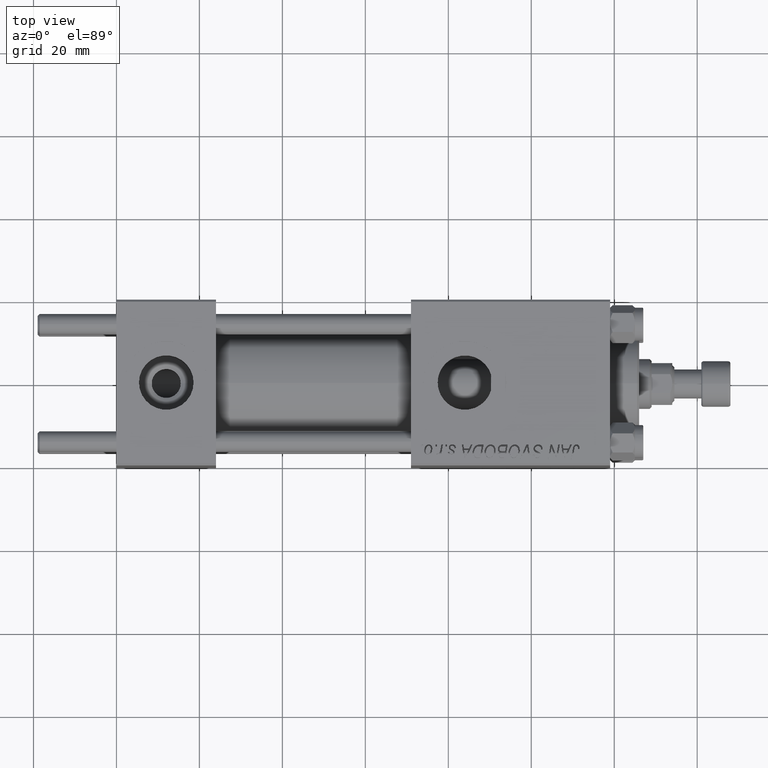
[diagram: clean part render]
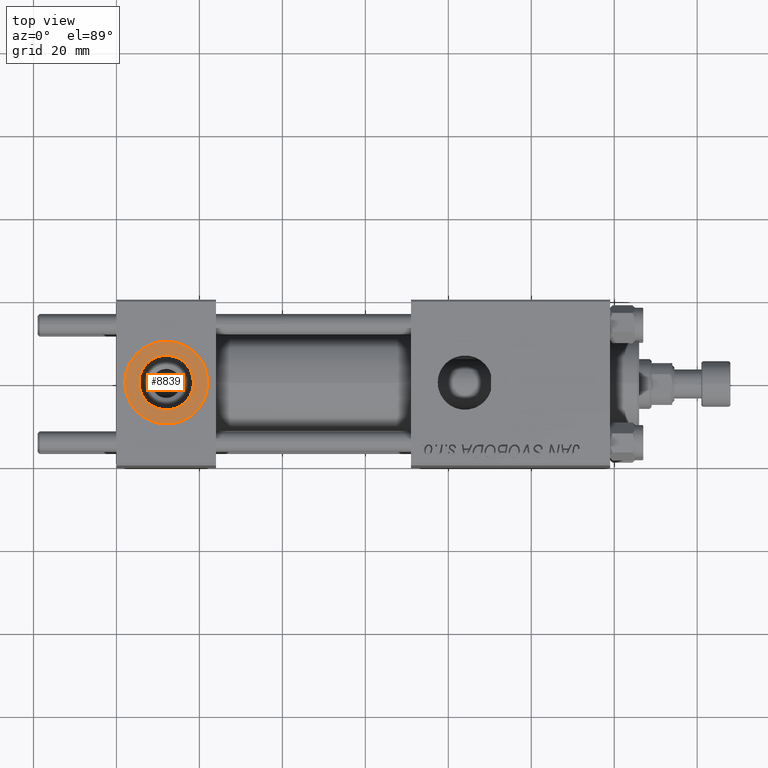
[diagram: same view with one face highlighted and labeled with its STEP entity id]
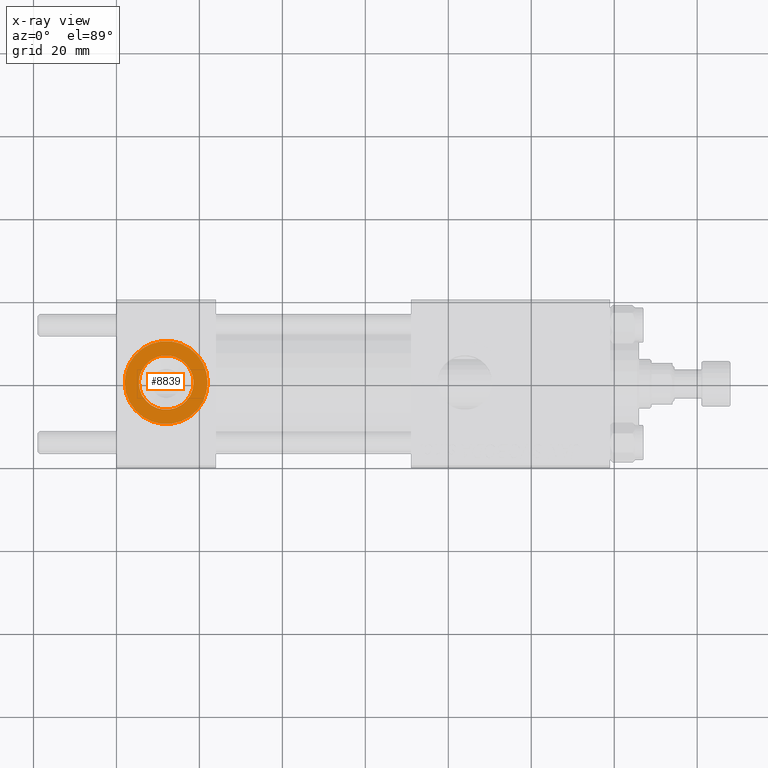
[diagram: x-ray of the same camera — body ghosted, the highlighted face saturated]
A machine part, top view. The second image highlights one B-rep face of the part: STEP entity #8839.
The next image is the same camera in x-ray: the body ghosted, the highlighted face saturated — about 0% of this face is hidden behind the body in this view.
In plain terms, the highlighted planar face has unit normal (0, 0, 1).
Its self-contained STEP definition (entity closure, byte-faithful):
#680 = CARTESIAN_POINT ( 'NONE',  ( 12.00000000000000000, 1.540743955509788682E-30, 19.79999999999999716 ) ) ;
#5235 = EDGE_LOOP ( 'NONE', ( #18372, #33664 ) ) ;
#5689 = CIRCLE ( 'NONE', #31722, 9.999999999999998224 ) ;
#5713 = EDGE_CURVE ( 'NONE', #42943, #48771, #44877, .T. ) ;
#8357 = DIRECTION ( 'NONE',  ( 1.000000000000000000, 0.000000000000000000, 0.000000000000000000 ) ) ;
#8839 = ADVANCED_FACE ( 'NONE', ( #24606, #44234 ), #35581, .T. ) ;
#9689 = CARTESIAN_POINT ( 'NONE',  ( 12.00000000000000000, 1.540743955509788682E-30, 19.79999999999999716 ) ) ;
#9899 = DIRECTION ( 'NONE',  ( 0.000000000000000000, 0.000000000000000000, 1.000000000000000000 ) ) ;
#10324 = AXIS2_PLACEMENT_3D ( 'NONE', #9689, #21654, #25977 ) ;
#12962 = CIRCLE ( 'NONE', #19456, 6.579999999999999183 ) ;
#16215 = DIRECTION ( 'NONE',  ( 0.000000000000000000, 0.000000000000000000, 1.000000000000000000 ) ) ;
#16244 = CARTESIAN_POINT ( 'NONE',  ( 12.00000000000000000, 1.540743955509788682E-30, 19.79999999999999716 ) ) ;
#17178 = CARTESIAN_POINT ( 'NONE',  ( 5.420000000000000817, 8.058175938389596335E-16, 19.79999999999999716 ) ) ;
#18372 = ORIENTED_EDGE ( 'NONE', *, *, #36225, .F. ) ;
#18437 = CARTESIAN_POINT ( 'NONE',  ( 22.00000000000000000, 1.540743955509788682E-30, 19.79999999999999716 ) ) ;
#18863 = VERTEX_POINT ( 'NONE', #35376 ) ;
#19456 = AXIS2_PLACEMENT_3D ( 'NONE', #16244, #39438, #8357 ) ;
#20923 = ORIENTED_EDGE ( 'NONE', *, *, #5713, .T. ) ;
#21654 = DIRECTION ( 'NONE',  ( 0.000000000000000000, 0.000000000000000000, 1.000000000000000000 ) ) ;
#23271 = CARTESIAN_POINT ( 'NONE',  ( 12.00000000000000000, 1.540743955509788682E-30, 19.79999999999999716 ) ) ;
#24562 = VERTEX_POINT ( 'NONE', #17178 ) ;
#24606 = FACE_BOUND ( 'NONE', #5235, .T. ) ;
#24911 = DIRECTION ( 'NONE',  ( 1.000000000000000000, 0.000000000000000000, 0.000000000000000000 ) ) ;
#25862 = EDGE_CURVE ( 'NONE', #24562, #18863, #40414, .T. ) ;
#25977 = DIRECTION ( 'NONE',  ( 1.000000000000000000, 0.000000000000000000, 0.000000000000000000 ) ) ;
#31169 = DIRECTION ( 'NONE',  ( 0.000000000000000000, 0.000000000000000000, 1.000000000000000000 ) ) ;
#31722 = AXIS2_PLACEMENT_3D ( 'NONE', #23271, #31169, #46481 ) ;
#33030 = ORIENTED_EDGE ( 'NONE', *, *, #37394, .T. ) ;
#33664 = ORIENTED_EDGE ( 'NONE', *, *, #25862, .F. ) ;
#35376 = CARTESIAN_POINT ( 'NONE',  ( 18.57999999999999829, 1.540743955509788682E-30, 19.79999999999999716 ) ) ;
#35581 = PLANE ( 'NONE',  #44034 ) ;
#36225 = EDGE_CURVE ( 'NONE', #18863, #24562, #12962, .T. ) ;
#37394 = EDGE_CURVE ( 'NONE', #48771, #42943, #5689, .T. ) ;
#39438 = DIRECTION ( 'NONE',  ( 0.000000000000000000, 0.000000000000000000, 1.000000000000000000 ) ) ;
#40154 = DIRECTION ( 'NONE',  ( 1.000000000000000000, 0.000000000000000000, -0.000000000000000000 ) ) ;
#40414 = CIRCLE ( 'NONE', #10324, 6.579999999999999183 ) ;
#41641 = AXIS2_PLACEMENT_3D ( 'NONE', #45060, #9899, #24911 ) ;
#42943 = VERTEX_POINT ( 'NONE', #49257 ) ;
#43691 = EDGE_LOOP ( 'NONE', ( #33030, #20923 ) ) ;
#44034 = AXIS2_PLACEMENT_3D ( 'NONE', #680, #16215, #40154 ) ;
#44234 = FACE_OUTER_BOUND ( 'NONE', #43691, .T. ) ;
#44877 = CIRCLE ( 'NONE', #41641, 9.999999999999998224 ) ;
#45060 = CARTESIAN_POINT ( 'NONE',  ( 12.00000000000000000, 1.540743955509788682E-30, 19.79999999999999716 ) ) ;
#46481 = DIRECTION ( 'NONE',  ( 1.000000000000000000, 0.000000000000000000, 0.000000000000000000 ) ) ;
#48771 = VERTEX_POINT ( 'NONE', #18437 ) ;
#49257 = CARTESIAN_POINT ( 'NONE',  ( 2.000000000000003553, 1.224646799147354440E-15, 19.79999999999999716 ) ) ;